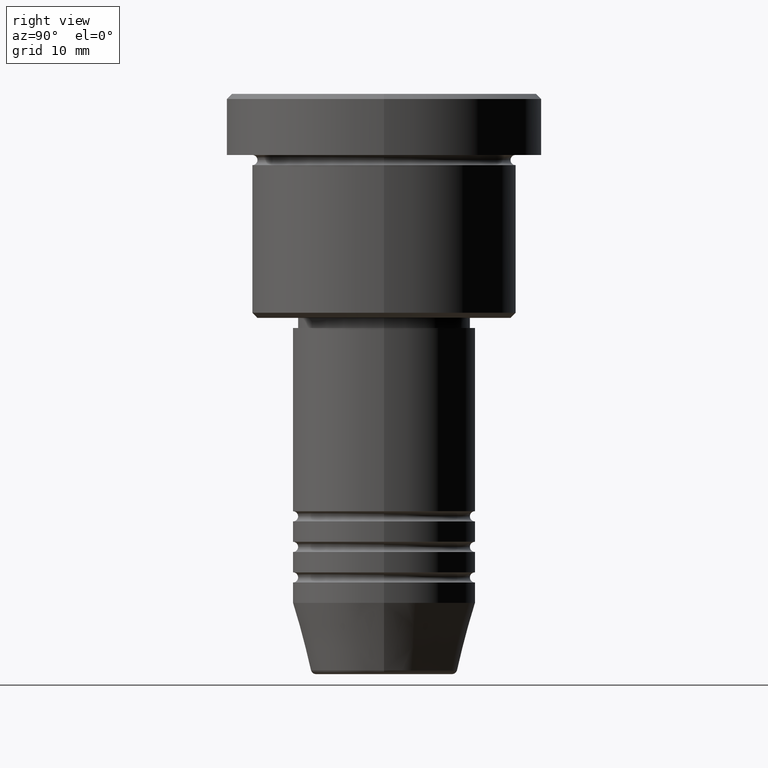
[diagram: clean part render]
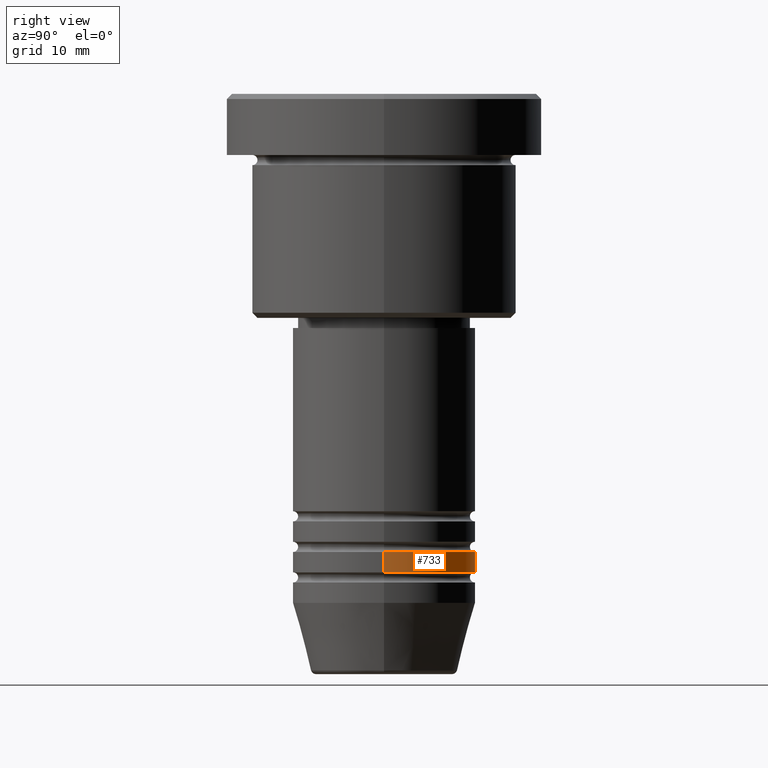
[diagram: same view with one face highlighted and labeled with its STEP entity id]
A machine part, right view. The second image highlights one B-rep face of the part: STEP entity #733.
In plain terms, the highlighted cylindrical surface (partial cylindrical patch) has radius 9 mm, axis along (-0, -0, 1).
Its self-contained STEP definition (entity closure, byte-faithful):
#38 = DIRECTION ( 'NONE',  ( -0.000000000000000000, -0.000000000000000000, 1.000000000000000000 ) ) ;
#53 = CARTESIAN_POINT ( 'NONE',  ( 0.000000000000000000, 0.000000000000000000, 0.000000000000000000 ) ) ;
#81 = AXIS2_PLACEMENT_3D ( 'NONE', #274, #206, #470 ) ;
#121 = VECTOR ( 'NONE', #729, 1000.000000000000000 ) ;
#131 = DIRECTION ( 'NONE',  ( 1.000000000000000000, 0.000000000000000000, 0.000000000000000000 ) ) ;
#151 = ORIENTED_EDGE ( 'NONE', *, *, #738, .F. ) ;
#206 = DIRECTION ( 'NONE',  ( -0.000000000000000000, -0.000000000000000000, 1.000000000000000000 ) ) ;
#249 = CARTESIAN_POINT ( 'NONE',  ( -9.000000000000000000, 1.102182119232617714E-15, -46.99999999999998579 ) ) ;
#265 = CARTESIAN_POINT ( 'NONE',  ( 0.000000000000000000, 0.000000000000000000, -44.99999999999998579 ) ) ;
#274 = CARTESIAN_POINT ( 'NONE',  ( 0.000000000000000000, 0.000000000000000000, -46.99999999999998579 ) ) ;
#278 = ORIENTED_EDGE ( 'NONE', *, *, #933, .T. ) ;
#302 = CARTESIAN_POINT ( 'NONE',  ( 9.000000000000000000, 0.000000000000000000, -44.99999999999998579 ) ) ;
#382 = VERTEX_POINT ( 'NONE', #249 ) ;
#388 = AXIS2_PLACEMENT_3D ( 'NONE', #265, #637, #1002 ) ;
#414 = EDGE_CURVE ( 'NONE', #705, #744, #462, .T. ) ;
#435 = EDGE_LOOP ( 'NONE', ( #278, #886, #1155, #151 ) ) ;
#462 = CIRCLE ( 'NONE', #388, 9.000000000000000000 ) ;
#470 = DIRECTION ( 'NONE',  ( 1.000000000000000000, 0.000000000000000000, 0.000000000000000000 ) ) ;
#637 = DIRECTION ( 'NONE',  ( -0.000000000000000000, -0.000000000000000000, 1.000000000000000000 ) ) ;
#643 = CARTESIAN_POINT ( 'NONE',  ( -9.000000000000000000, 1.102182119232617714E-15, 0.000000000000000000 ) ) ;
#675 = CARTESIAN_POINT ( 'NONE',  ( 9.000000000000000000, 0.000000000000000000, 0.000000000000000000 ) ) ;
#693 = DIRECTION ( 'NONE',  ( -0.000000000000000000, -0.000000000000000000, 1.000000000000000000 ) ) ;
#705 = VERTEX_POINT ( 'NONE', #302 ) ;
#729 = DIRECTION ( 'NONE',  ( -0.000000000000000000, -0.000000000000000000, 1.000000000000000000 ) ) ;
#733 = ADVANCED_FACE ( 'NONE', ( #877 ), #1046, .T. ) ;
#738 = EDGE_CURVE ( 'NONE', #786, #705, #1036, .T. ) ;
#744 = VERTEX_POINT ( 'NONE', #1042 ) ;
#786 = VERTEX_POINT ( 'NONE', #976 ) ;
#877 = FACE_OUTER_BOUND ( 'NONE', #435, .T. ) ;
#886 = ORIENTED_EDGE ( 'NONE', *, *, #967, .T. ) ;
#933 = EDGE_CURVE ( 'NONE', #786, #382, #1058, .T. ) ;
#967 = EDGE_CURVE ( 'NONE', #382, #744, #1006, .T. ) ;
#976 = CARTESIAN_POINT ( 'NONE',  ( 9.000000000000000000, 0.000000000000000000, -46.99999999999998579 ) ) ;
#1002 = DIRECTION ( 'NONE',  ( 1.000000000000000000, 0.000000000000000000, 0.000000000000000000 ) ) ;
#1006 = LINE ( 'NONE', #643, #121 ) ;
#1036 = LINE ( 'NONE', #675, #1112 ) ;
#1042 = CARTESIAN_POINT ( 'NONE',  ( -9.000000000000000000, 1.102182119232617714E-15, -44.99999999999998579 ) ) ;
#1046 = CYLINDRICAL_SURFACE ( 'NONE', #1052, 9.000000000000000000 ) ;
#1052 = AXIS2_PLACEMENT_3D ( 'NONE', #53, #38, #131 ) ;
#1058 = CIRCLE ( 'NONE', #81, 9.000000000000000000 ) ;
#1112 = VECTOR ( 'NONE', #693, 1000.000000000000000 ) ;
#1155 = ORIENTED_EDGE ( 'NONE', *, *, #414, .F. ) ;